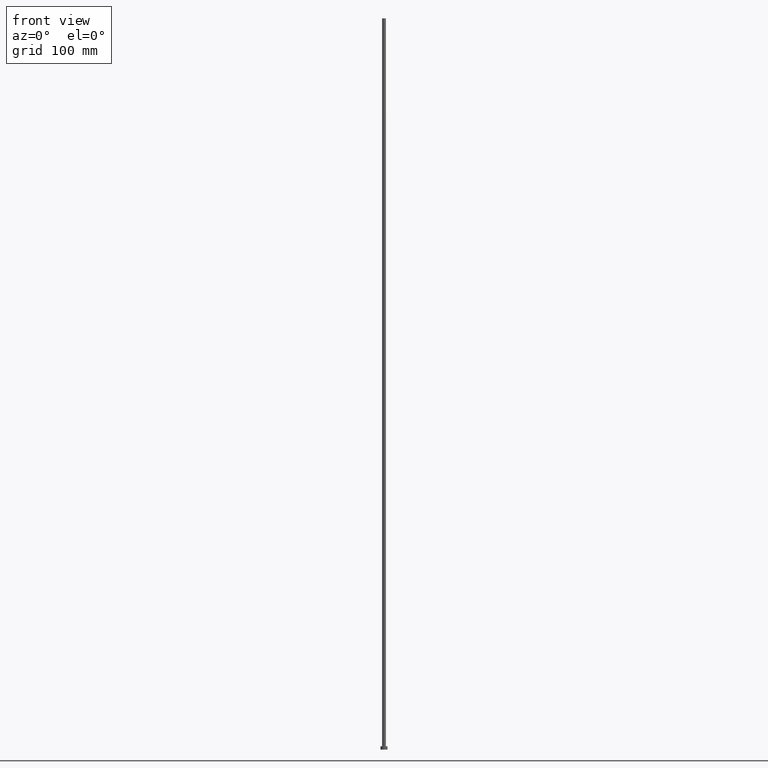
[diagram: clean part render]
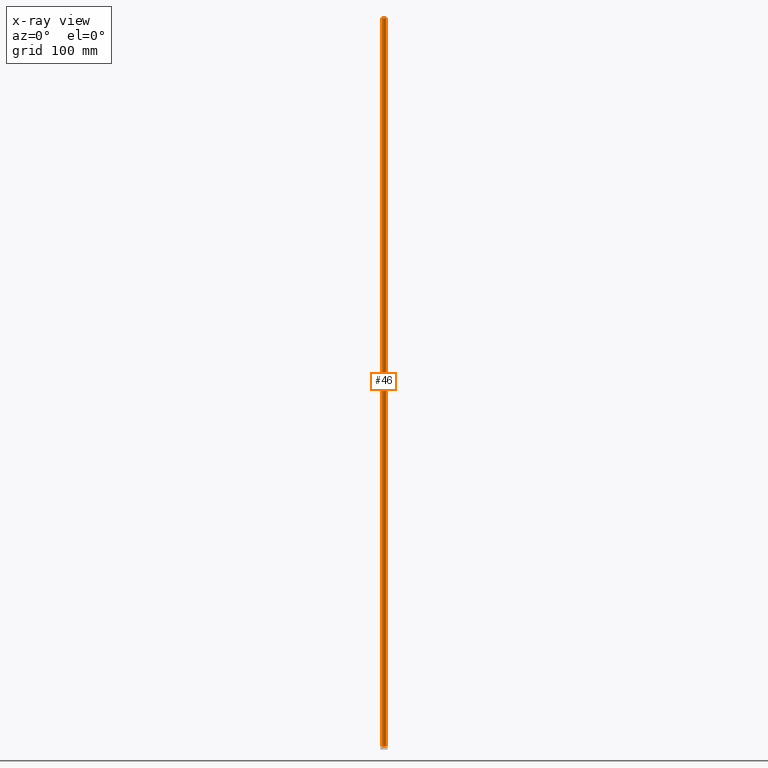
[diagram: x-ray — body ghosted, one internal face saturated and labeled with its STEP entity id]
A machine part, front view, then the same camera in x-ray: the body is ghosted and one INTERNAL B-rep face — a face not visible from any outside direction — is saturated and labeled: STEP entity #46.
In plain terms, the highlighted cylindrical surface (edge-blend (fillet) strip) has radius 1.6 mm, axis along (-0, -0, -1).
Its self-contained STEP definition (entity closure, byte-faithful):
#7 = CYLINDRICAL_SURFACE ( 'NONE', #236, 1.600000000000000089 ) ;
#10 = DIRECTION ( 'NONE',  ( -0.000000000000000000, -0.000000000000000000, -1.000000000000000000 ) ) ;
#12 = DIRECTION ( 'NONE',  ( -1.000000000000000000, 0.000000000000000000, 0.000000000000000000 ) ) ;
#14 = DIRECTION ( 'NONE',  ( 1.000000000000000000, 0.000000000000000000, 0.000000000000000000 ) ) ;
#24 = ORIENTED_EDGE ( 'NONE', *, *, #160, .T. ) ;
#43 = ORIENTED_EDGE ( 'NONE', *, *, #125, .T. ) ;
#46 = ADVANCED_FACE ( 'NONE', ( #131 ), #7, .T. ) ;
#52 = VERTEX_POINT ( 'NONE', #70 ) ;
#62 = AXIS2_PLACEMENT_3D ( 'NONE', #223, #205, #14 ) ;
#70 = CARTESIAN_POINT ( 'NONE',  ( -1.600000000000000089, 0.000000000000000000, 630.0000000000000000 ) ) ;
#72 = EDGE_CURVE ( 'NONE', #52, #162, #90, .T. ) ;
#74 = DIRECTION ( 'NONE',  ( -0.000000000000000000, -0.000000000000000000, -1.000000000000000000 ) ) ;
#76 = CARTESIAN_POINT ( 'NONE',  ( 1.600000000000000089, 1.959434878635765230E-16, 630.0000000000000000 ) ) ;
#82 = ORIENTED_EDGE ( 'NONE', *, *, #201, .F. ) ;
#90 = LINE ( 'NONE', #147, #252 ) ;
#99 = CIRCLE ( 'NONE', #254, 1.600000000000000089 ) ;
#111 = VERTEX_POINT ( 'NONE', #145 ) ;
#125 = EDGE_CURVE ( 'NONE', #111, #162, #170, .T. ) ;
#131 = FACE_OUTER_BOUND ( 'NONE', #142, .T. ) ;
#137 = DIRECTION ( 'NONE',  ( 1.000000000000000000, 0.000000000000000000, 0.000000000000000000 ) ) ;
#142 = EDGE_LOOP ( 'NONE', ( #82, #24, #43, #229 ) ) ;
#145 = CARTESIAN_POINT ( 'NONE',  ( 1.600000000000000089, 1.959434878635765230E-16, 3.000000000000000000 ) ) ;
#147 = CARTESIAN_POINT ( 'NONE',  ( -1.600000000000000089, 0.000000000000000000, 630.0000000000000000 ) ) ;
#154 = DIRECTION ( 'NONE',  ( 0.000000000000000000, 0.000000000000000000, 1.000000000000000000 ) ) ;
#160 = EDGE_CURVE ( 'NONE', #202, #111, #175, .T. ) ;
#162 = VERTEX_POINT ( 'NONE', #212 ) ;
#170 = CIRCLE ( 'NONE', #62, 1.600000000000000089 ) ;
#171 = CARTESIAN_POINT ( 'NONE',  ( 0.000000000000000000, 0.000000000000000000, 630.0000000000000000 ) ) ;
#175 = LINE ( 'NONE', #251, #197 ) ;
#197 = VECTOR ( 'NONE', #248, 1000.000000000000000 ) ;
#201 = EDGE_CURVE ( 'NONE', #202, #52, #99, .T. ) ;
#202 = VERTEX_POINT ( 'NONE', #76 ) ;
#205 = DIRECTION ( 'NONE',  ( 0.000000000000000000, 0.000000000000000000, 1.000000000000000000 ) ) ;
#212 = CARTESIAN_POINT ( 'NONE',  ( -1.600000000000000089, 0.000000000000000000, 3.000000000000000000 ) ) ;
#223 = CARTESIAN_POINT ( 'NONE',  ( 0.000000000000000000, 0.000000000000000000, 3.000000000000000000 ) ) ;
#229 = ORIENTED_EDGE ( 'NONE', *, *, #72, .F. ) ;
#236 = AXIS2_PLACEMENT_3D ( 'NONE', #240, #10, #12 ) ;
#240 = CARTESIAN_POINT ( 'NONE',  ( 0.000000000000000000, 0.000000000000000000, 630.0000000000000000 ) ) ;
#248 = DIRECTION ( 'NONE',  ( -0.000000000000000000, -0.000000000000000000, -1.000000000000000000 ) ) ;
#251 = CARTESIAN_POINT ( 'NONE',  ( 1.600000000000000089, 1.959434878635765230E-16, 630.0000000000000000 ) ) ;
#252 = VECTOR ( 'NONE', #74, 1000.000000000000000 ) ;
#254 = AXIS2_PLACEMENT_3D ( 'NONE', #171, #154, #137 ) ;